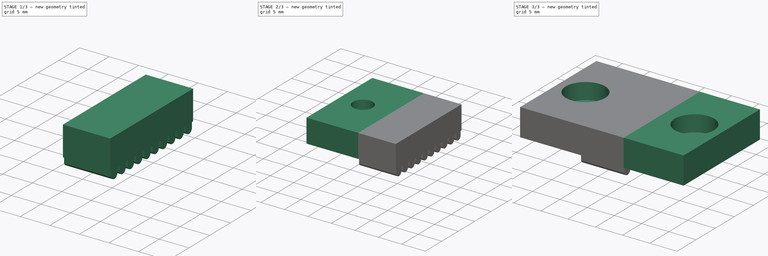
[diagram: build sequence overview — one tinted view per stage of 3, left to right]
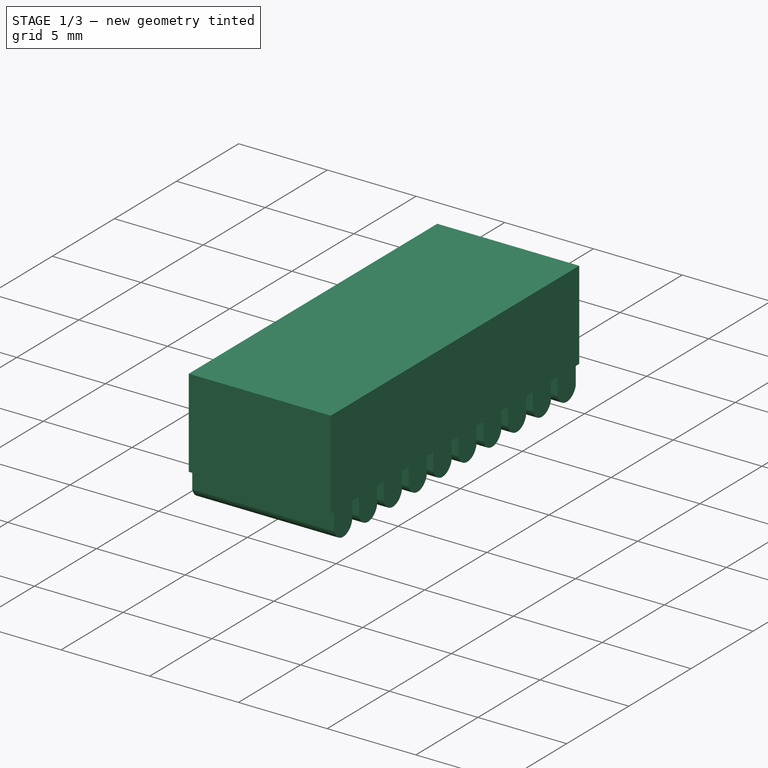
[diagram: stage 1 of 3 — iso view after this stage's code; geometry added in this stage tinted green]
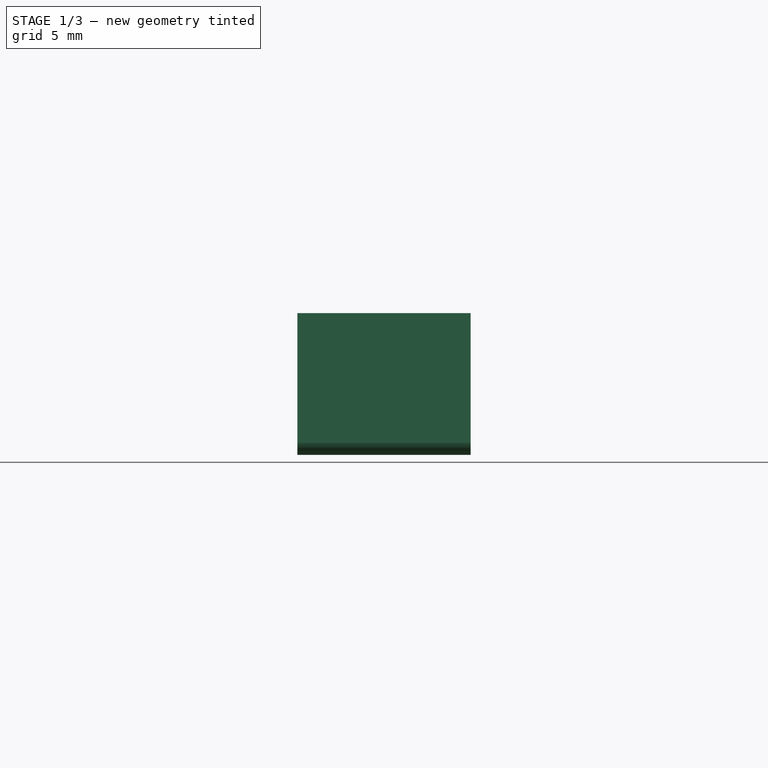
[diagram: stage 1 of 3 — front view after this stage's code; geometry added in this stage tinted green]
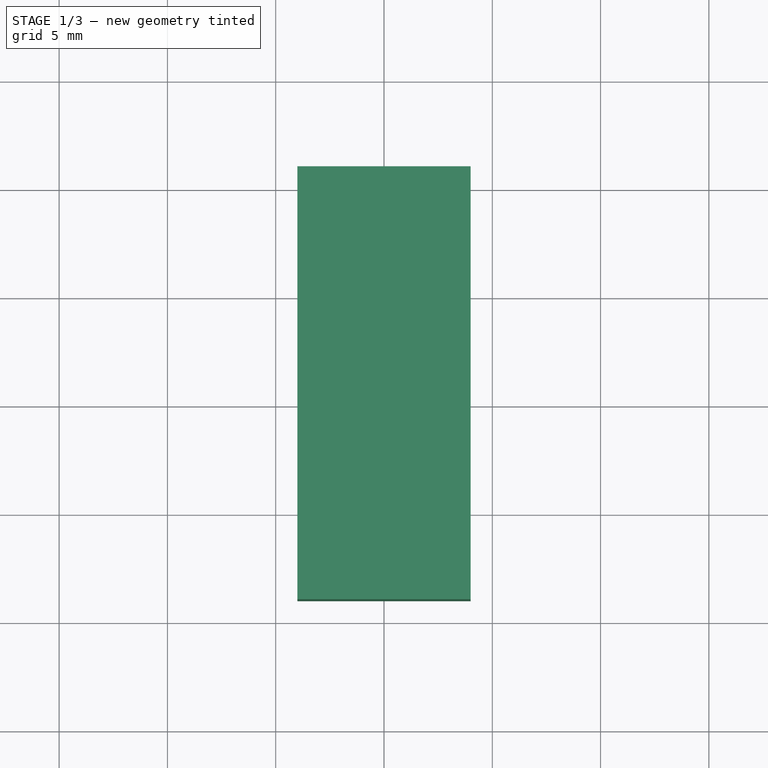
[diagram: stage 1 of 3 — top view after this stage's code; geometry added in this stage tinted green]
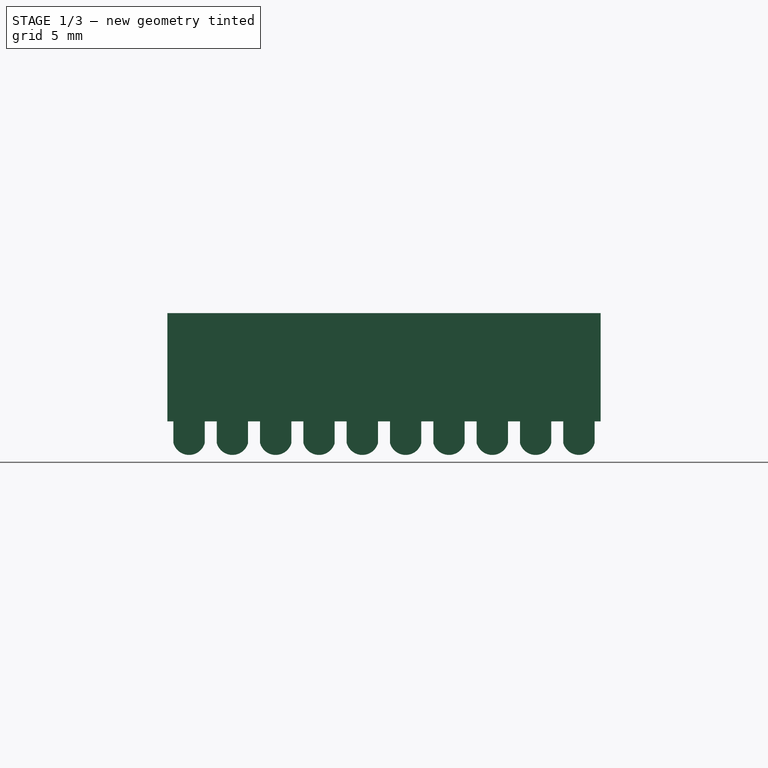
[diagram: stage 1 of 3 — right view after this stage's code; geometry added in this stage tinted green]
FCSTD DOCUMENT  (FreeCAD 2023.521R36908 (Git))
Label: Y_Front_Base_Lock
License: All rights reserved
objects: Sketcher::SketchObject×3, PartDesign::Pad×2, PartDesign::LinearPattern×1, PartDesign::Mirrored×1, PartDesign::Pocket×1, PartDesign::Body×1
note: 22 computed .brp shape members not serialized (recipe doc carries the construction recipe); baked Part::Feature solids carry a one-line shape summary decoded from their .brp

FEATURE [Sketcher::SketchObject] Sketch
  ArcFitTolerance = 1e-06
  AttachmentSupport = -> [YZ_Plane]
  ExternalBSplineMaxDegree = 5
  ExternalBSplineTolerance = 0.0001
  FullyConstrained = true
  InternalTolerance = 1e-06
  InvalidShape = false
  MakeInternals = false
  MapMode = 5
  Placement = pos=(0,0,0) rot=(0.57735,0.57735,0.57735;2.0944rad)
  Support = -> [YZ_Plane]
  TreeRank = 11
  ValidateShape = false
  sketch-geometry (8):
    g0: LineSegment StartX=-1 StartY=0 StartZ=0 EndX=1 EndY=0 EndZ=0
    g1: ArcOfCircle CenterX=0 CenterY=-5.8 CenterZ=0 NormalX=0 NormalY=0 NormalZ=1 AngleXU=0 Radius=0.75 StartAngle=3.41153 EndAngle=6.01325
    g2: LineSegment StartX=-0.722842 StartY=-6 StartZ=0 EndX=-0.722842 EndY=-5 EndZ=0
    g3: LineSegment StartX=-0.722842 StartY=-5 StartZ=0 EndX=-1 EndY=-5 EndZ=0
    g4: LineSegment StartX=-1 StartY=-5 StartZ=0 EndX=-1 EndY=0 EndZ=0
    g5: LineSegment StartX=0.722842 StartY=-6 StartZ=0 EndX=0.722842 EndY=-5 EndZ=0
    g6: LineSegment StartX=0.722842 StartY=-5 StartZ=0 EndX=1 EndY=-5 EndZ=0
    g7: LineSegment StartX=1 StartY=-5 StartZ=0 EndX=1 EndY=0 EndZ=0
  constraints (24):
    c: PointOnObject(g0,g-1)
    c: Symmetric(g0,g0,g-1)
    c: DistanceX(g0,g0) = 2
    c: PointOnObject(g1,g-2)
    c: Coincident(g3,g2)
    c: Coincident(g4,g3)
    c: Coincident(g4,g0)
    c: Coincident(g5,g1)
    c: Vertical(g5)
    c: Coincident(g6,g5)
    c: Coincident(g7,g6)
    c: Coincident(g7,g0)
    c: Coincident(g2,g1)
    c: Diameter(g1) = 1.5
    c: Horizontal(g6)
    c: Horizontal(g3)
    c: Horizontal(g2,g5)
    c: Vertical(g2)
    c: Horizontal(g1,g1)
    c: Vertical(g7)
    c: Vertical(g4)
    c: DistanceY(g5,g5) = 1
    c: DistanceY(g7,g7) = 5
    c: DistanceY(g1,g1) = 0.2
FEATURE [PartDesign::Pad] Pad
  AddSubType = 0
  AlongSketchNormal = false
  AutoTaperInnerAngle = true
  CheckUpToFaceLimits = true
  ClaimChildren = false
  Direction = (1,-2e-16,3e-16)
  Fit = 0
  FitJoin = 0
  InnerFit = 0
  InnerFitJoin = 0
  InvalidShape = false
  Length = 8
  Length2 = 10
  Linearize = true
  Midplane = true
  NewSolid = false
  Profile = -> Sketch
  ReferenceAxis = -> Sketch [N_Axis]
  Suppress = false
  TaperInnerAngle = 0
  TaperInnerAngleRev = 0
  TreeRank = 12
  Type = 0
  ValidateShape = true
  _ProfileBasedVersion = 1
FEATURE [PartDesign::LinearPattern] LinearPattern
  AddSubType = 0
  BaseFeature = -> Pad
  CopyShape = false
  Direction = -> Y_Axis
  InvalidShape = false
  Length = 18
  NewSolid = false
  Occurrences = 10
  OriginalSubs = -> [Pad]
  Originals = -> [Pad]
  ParallelTransform = true
  SubTransform = true
  Suppress = false
  TransformOffset = pos=(0,2,0) rot=(0,0,1;0rad)
  TreeRank = 13
  ValidateShape = true
  _Version = 3
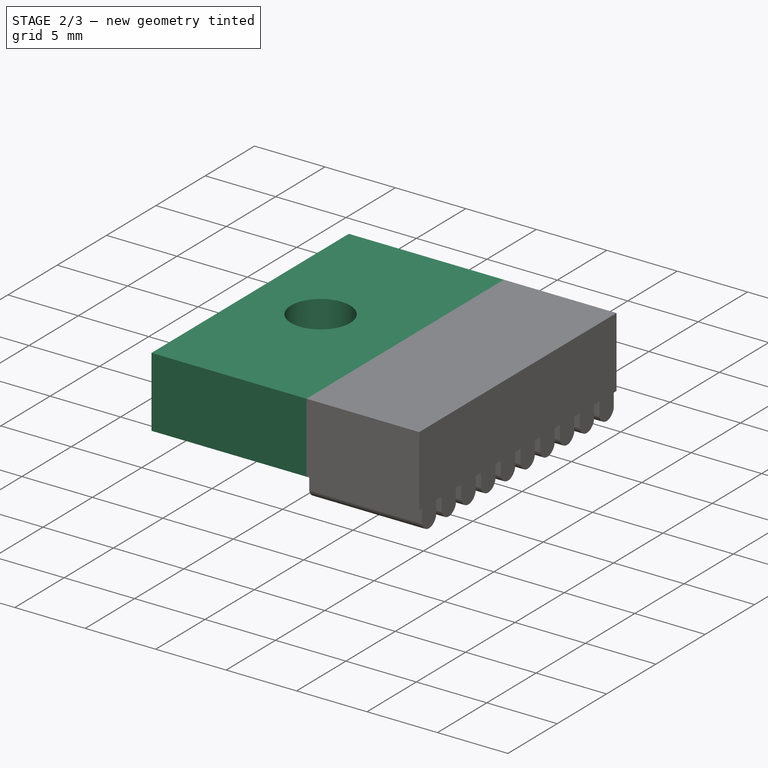
[diagram: stage 2 of 3 — iso view after this stage's code; geometry added in this stage tinted green]
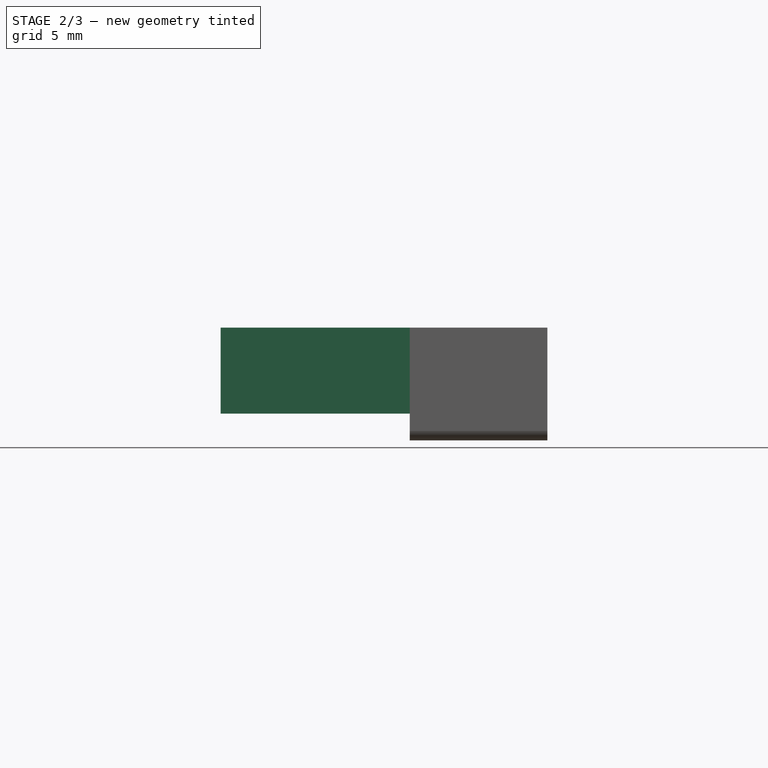
[diagram: stage 2 of 3 — front view after this stage's code; geometry added in this stage tinted green]
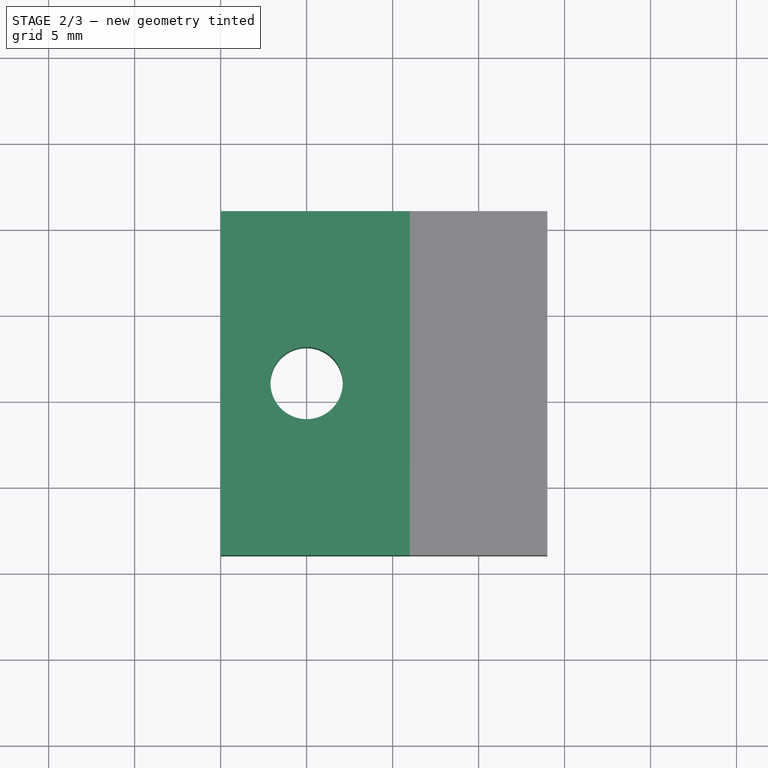
[diagram: stage 2 of 3 — top view after this stage's code; geometry added in this stage tinted green]
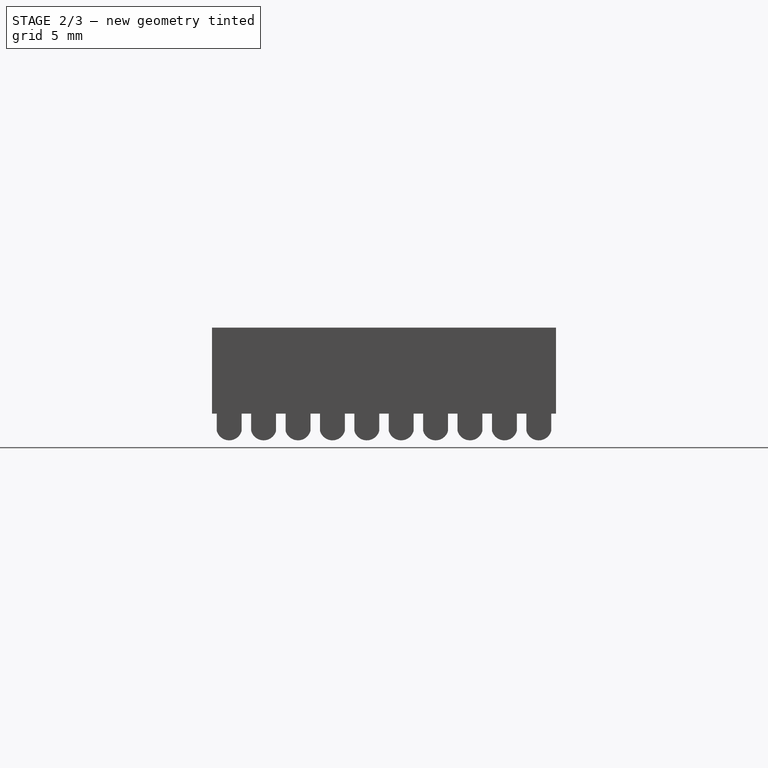
[diagram: stage 2 of 3 — right view after this stage's code; geometry added in this stage tinted green]
FEATURE [Sketcher::SketchObject] Sketch001
  ArcFitTolerance = 1e-06
  AttachmentSupport = -> [LinearPattern]
  ExternalBSplineMaxDegree = 5
  ExternalBSplineTolerance = 0.0001
  ExternalGeometry = -> [LinearPattern]
  FullyConstrained = true
  InternalTolerance = 1e-06
  InvalidShape = false
  MakeInternals = false
  MapMode = 5
  Placement = pos=(0,0,4e-16) rot=(0,0,1;0rad)
  Support = -> [LinearPattern]
  TreeRank = 14
  ValidateShape = false
  sketch-geometry (6):
    g0: LineSegment StartX=-4 StartY=1 StartZ=0 EndX=-15 EndY=1 EndZ=0
    g1: LineSegment StartX=-15 StartY=1 StartZ=0 EndX=-15 EndY=21 EndZ=0
    g2: LineSegment StartX=-15 StartY=21 StartZ=0 EndX=-4 EndY=21 EndZ=0
    g3: LineSegment StartX=-4 StartY=21 StartZ=0 EndX=-4 EndY=1 EndZ=0
    g4: Circle CenterX=-10 CenterY=11 CenterZ=0 NormalX=0 NormalY=0 NormalZ=1 AngleXU=0 Radius=2.1
    g5: GeomPoint [constr] X=-4 Y=11 Z=0
  constraints (14):
    c: Coincident(g0,g1)
    c: Coincident(g1,g2)
    c: Coincident(g2,g3)
    c: Coincident(g3,g0)
    c: Horizontal(g0)
    c: Horizontal(g2)
    c: Vertical(g1)
    c: Coincident(g0,g-3)
    c: Diameter(g4) = 4.2
    c: DistanceX(g0,g-1) = 15
    c: DistanceX(g4,g-1) = 10
    c: Symmetric(g3,g3,g5)
    c: Horizontal(g5,g4)
    c: Coincident(g2,g-4)
FEATURE [PartDesign::Pad] Pad001
  AddSubType = 0
  AlongSketchNormal = false
  AutoTaperInnerAngle = true
  BaseFeature = -> LinearPattern
  CheckUpToFaceLimits = true
  ClaimChildren = false
  Direction = (-3e-16,2e-16,1)
  Fit = 0
  FitJoin = 0
  InnerFit = 0
  InnerFitJoin = 0
  InvalidShape = false
  Length = 10
  Length2 = 10
  Linearize = true
  NewSolid = false
  Profile = -> Sketch001
  ReferenceAxis = -> Sketch001 [N_Axis]
  Suppress = false
  TaperInnerAngle = 0
  TaperInnerAngleRev = 0
  TreeRank = 15
  Type = 3
  UpToFace = -> LinearPattern [Face70]
  ValidateShape = true
  _ProfileBasedVersion = 1
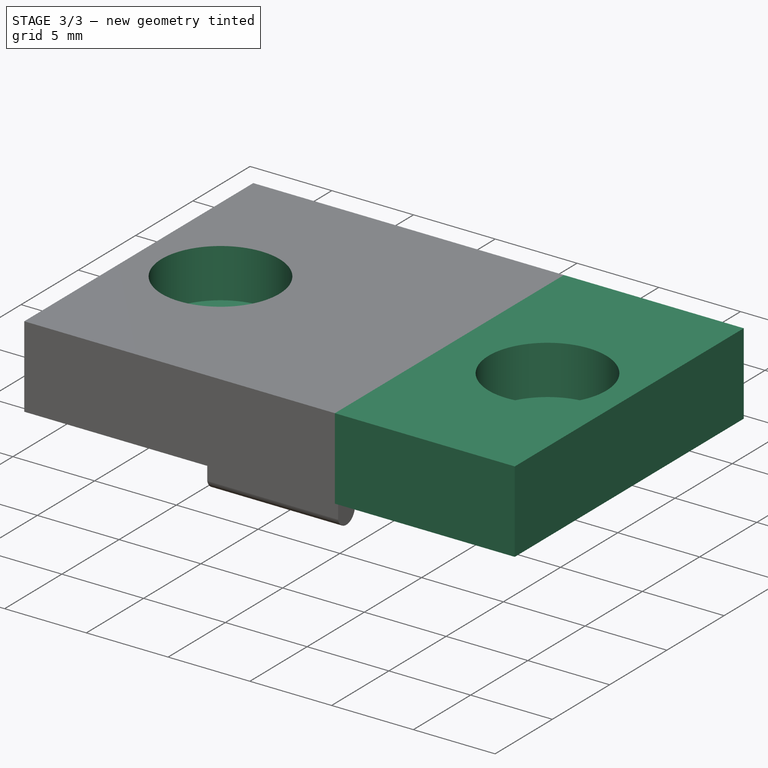
[diagram: stage 3 of 3 — iso view after this stage's code; geometry added in this stage tinted green]
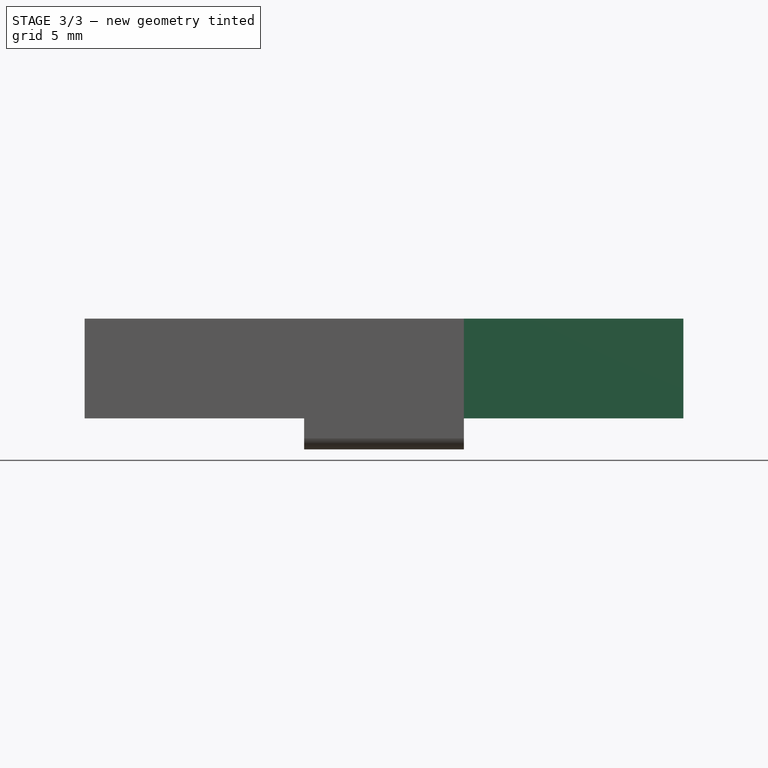
[diagram: stage 3 of 3 — front view after this stage's code; geometry added in this stage tinted green]
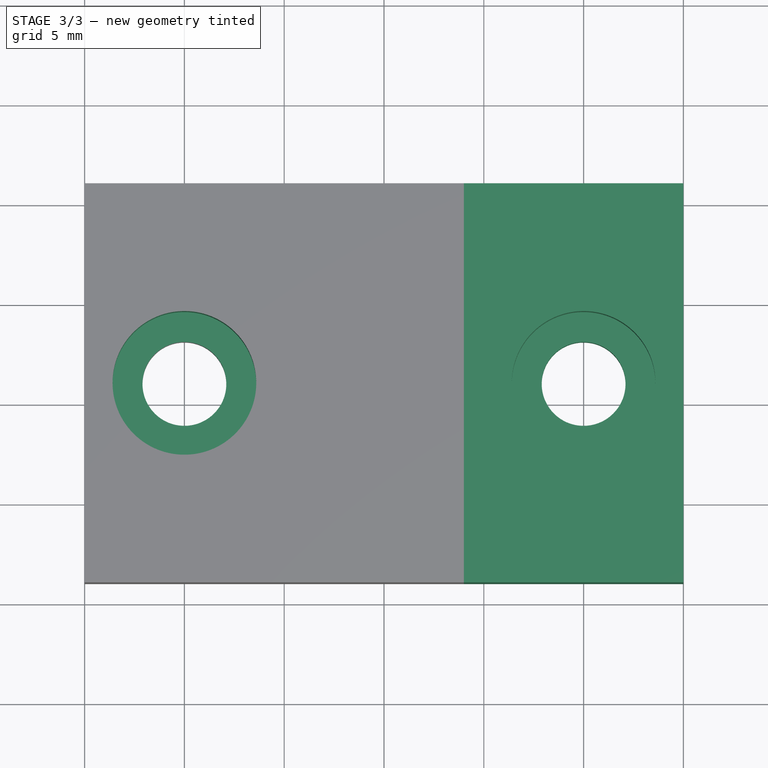
[diagram: stage 3 of 3 — top view after this stage's code; geometry added in this stage tinted green]
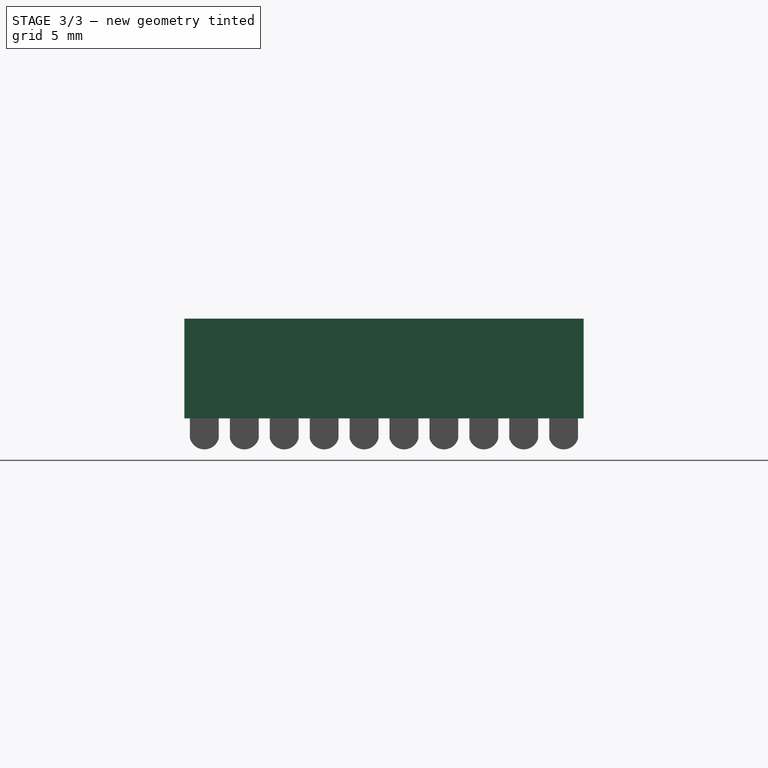
[diagram: stage 3 of 3 — right view after this stage's code; geometry added in this stage tinted green]
FEATURE [PartDesign::Mirrored] Mirrored
  AddSubType = 0
  BaseFeature = -> Pad001
  CopyShape = false
  InvalidShape = false
  MirrorPlane = -> Sketch001 [V_Axis]
  NewSolid = false
  OriginalSubs = -> [Pad001]
  Originals = -> [Pad001]
  ParallelTransform = true
  SubTransform = true
  Suppress = false
  TreeRank = 16
  ValidateShape = true
  _Version = 3
FEATURE [Sketcher::SketchObject] Sketch002
  ArcFitTolerance = 1e-06
  AttachmentSupport = -> [Mirrored]
  ExternalBSplineMaxDegree = 5
  ExternalBSplineTolerance = 0.0001
  ExternalGeometry = -> [Mirrored]
  FullyConstrained = true
  InternalTolerance = 1e-06
  InvalidShape = false
  MakeInternals = false
  MapMode = 5
  Placement = pos=(0,0,4e-16) rot=(0,0,1;0rad)
  Support = -> [Mirrored]
  TreeRank = 17
  ValidateShape = false
  sketch-geometry (2):
    g0: Circle CenterX=-10 CenterY=11 CenterZ=0 NormalX=0 NormalY=0 NormalZ=1 AngleXU=0 Radius=3.6
    g1: Circle CenterX=10 CenterY=11 CenterZ=0 NormalX=0 NormalY=0 NormalZ=1 AngleXU=0 Radius=3.6
  constraints (4):
    c: Coincident(g0,g-3)
    c: Coincident(g1,g-4)
    c: Equal(g1,g0)
    c: Diameter(g1) = 7.2
FEATURE [PartDesign::Pocket] Pocket
  AddSubType = 1
  AlongSketchNormal = false
  AutoTaperInnerAngle = true
  BaseFeature = -> Mirrored
  CheckUpToFaceLimits = true
  ClaimChildren = false
  Direction = (3e-16,-2e-16,-1)
  Fit = 0
  FitJoin = 0
  InnerFit = 0
  InnerFitJoin = 0
  InvalidShape = false
  Length = 3
  Length2 = 10
  Linearize = true
  NewSolid = false
  Profile = -> Sketch002
  ReferenceAxis = -> Sketch002 [N_Axis]
  Suppress = false
  TaperInnerAngle = 0
  TaperInnerAngleRev = 0
  TreeRank = 18
  Type = 0
  ValidateShape = true
  _ProfileBasedVersion = 1
  _Version = 1
FEATURE [PartDesign::Body] Body
  AutoGroupSolids = false
  ClaimAllChildren = false
  ExportMode = 0
  Group = -> [Sketch,Pad,LinearPattern,Sketch001,Pad001,Mirrored,Sketch002,Pocket]
  InvalidShape = false
  Origin = -> Origin
  Tip = -> Pocket
  TreeRank = 10
  ValidateShape = false
  _ExportChildren = -> [Pad,LinearPattern,Pad001,Mirrored,Pocket]
  _GroupVersion = 1
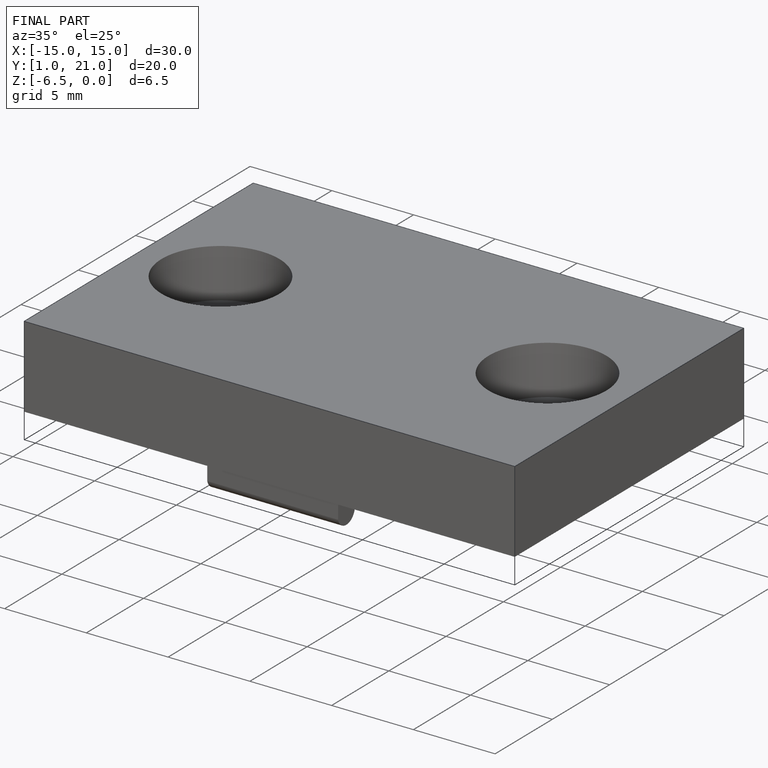
[diagram: finished part — iso view with bounding-box wireframe]
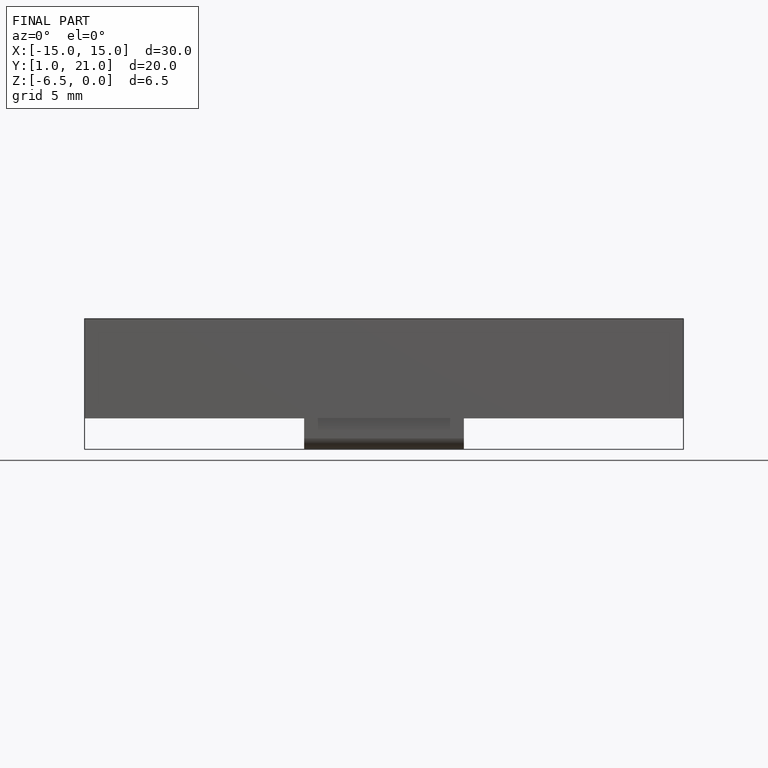
[diagram: finished part — front view with bounding-box wireframe]
